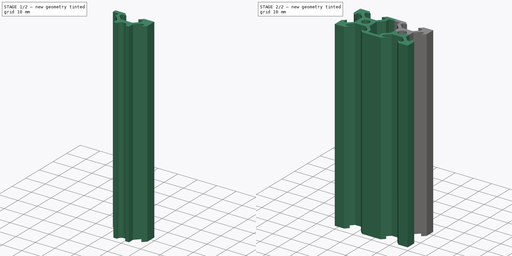
[diagram: build sequence overview — one tinted view per stage of 2, left to right]
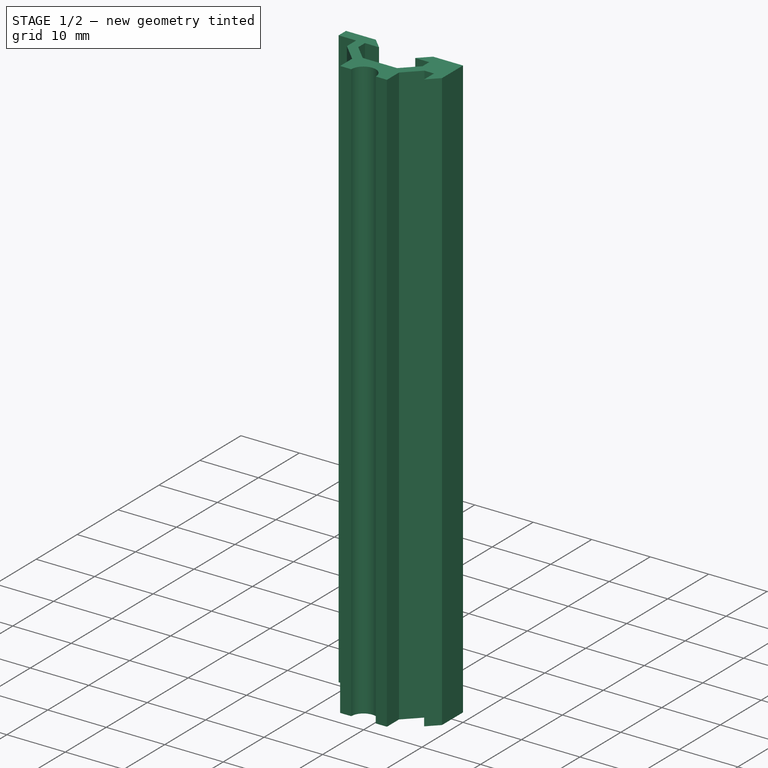
[diagram: stage 1 of 2 — iso view after this stage's code; geometry added in this stage tinted green]
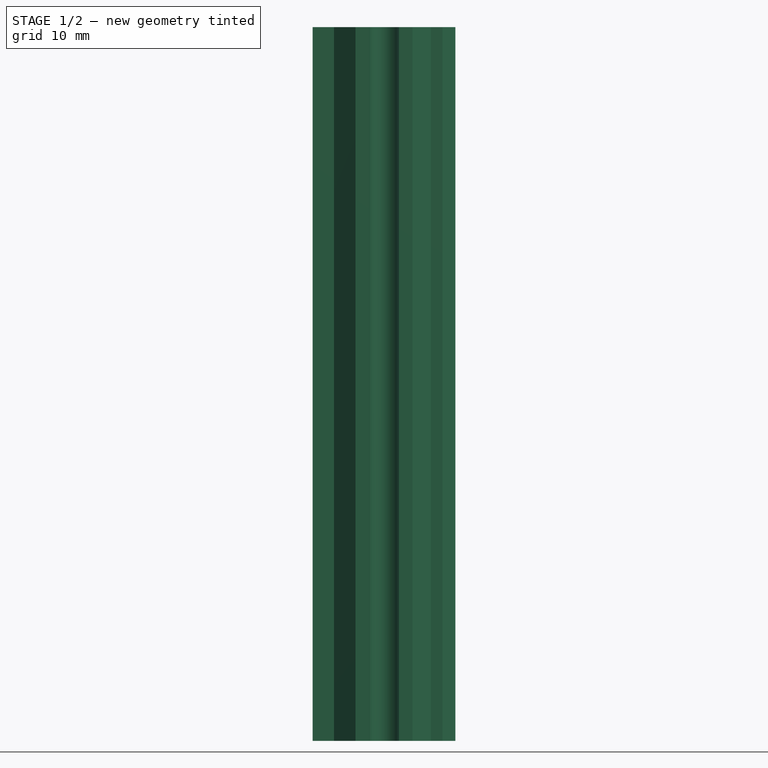
[diagram: stage 1 of 2 — front view after this stage's code; geometry added in this stage tinted green]
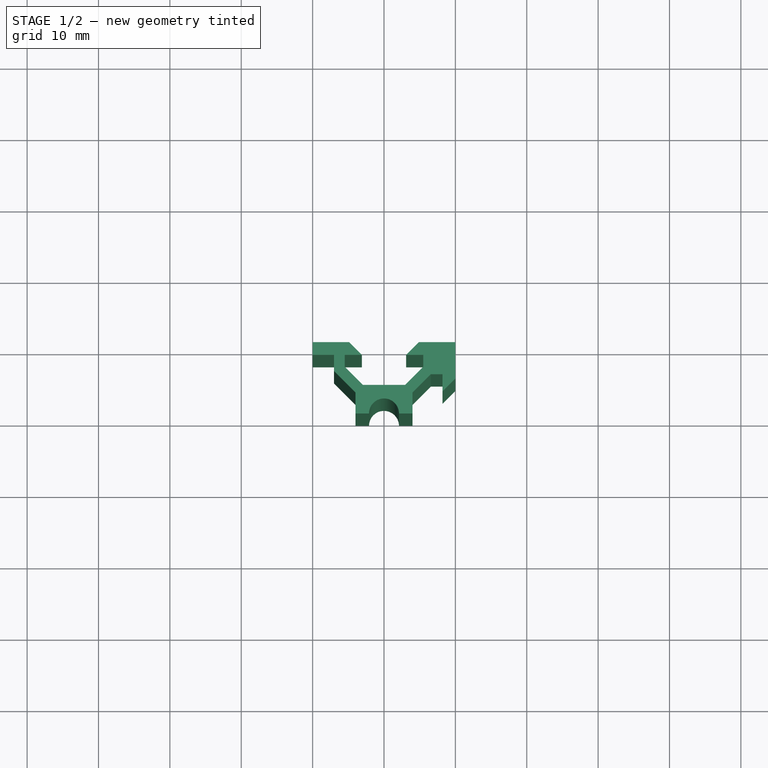
[diagram: stage 1 of 2 — top view after this stage's code; geometry added in this stage tinted green]
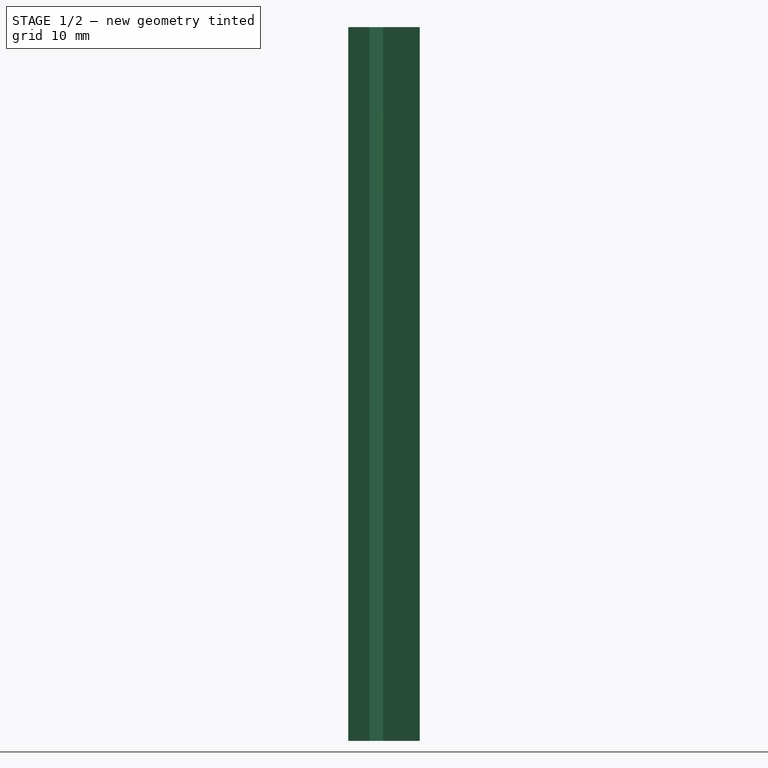
[diagram: stage 1 of 2 — right view after this stage's code; geometry added in this stage tinted green]
FCSTD DOCUMENT  (FreeCAD 0.20R29410 (Git))
Label: AlExtrusion2040
License: All rights reserved
LicenseURL: http://en.wikipedia.org/wiki/All_rights_reserved
objects: App::DocumentObjectGroup×3, PartDesign::Mirrored×2, PartDesign::CoordinateSystem×1, App::FeaturePython×1, Sketcher::SketchObject×1, PartDesign::Pad×1, PartDesign::MultiTransform×1, PartDesign::Body×1, App::Part×1
note: 8 computed .brp shape members not serialized (recipe doc carries the construction recipe); baked Part::Feature solids carry a one-line shape summary decoded from their .brp

FEATURE [App::DocumentObjectGroup] Parts
FEATURE [PartDesign::CoordinateSystem] LCS_Origin
  AttacherType = Attacher::AttachEngine3D
  MapMode = 2
  Support = -> [X_Axis]
FEATURE [App::FeaturePython] Variables  # WARN: FeaturePython — macro-defined, semantics opaque (R4)
  Length = 100
  Type = App::PropertyContainer
FEATURE [App::DocumentObjectGroup] Constraints
FEATURE [App::DocumentObjectGroup] Configurations
FEATURE [Sketcher::SketchObject] Sketch
  FullyConstrained = true
  MapMode = 5
  Support = -> [XY_Plane001]
  sketch-geometry (30):
    g0: LineSegment StartX=0 StartY=10 StartZ=0 EndX=5.1 EndY=10 EndZ=0
    g1: LineSegment StartX=5.1 StartY=10 StartZ=0 EndX=6.9 EndY=8.2 EndZ=0
    g2: LineSegment StartX=6.9 StartY=8.2 StartZ=0 EndX=4.5 EndY=8.2 EndZ=0
    g3: LineSegment StartX=4.5 StartY=8.2 StartZ=0 EndX=4.5 EndY=6.56066 EndZ=0
    g4: LineSegment StartX=4.5 StartY=6.56066 StartZ=0 EndX=7.06066 EndY=4 EndZ=0
    g5: LineSegment StartX=7.06066 StartY=4 StartZ=0 EndX=12.9393 EndY=4 EndZ=0
    g6: LineSegment StartX=12.9393 StartY=4 StartZ=0 EndX=15.5 EndY=6.56066 EndZ=0
    g7: LineSegment StartX=15.5 StartY=6.56066 StartZ=0 EndX=15.5 EndY=8.2 EndZ=0
    g8: LineSegment StartX=15.5 StartY=8.2 StartZ=0 EndX=13.1 EndY=8.2 EndZ=0
    g9: LineSegment StartX=13.1 StartY=8.2 StartZ=0 EndX=14.9 EndY=10 EndZ=0
    g10: LineSegment StartX=14.9 StartY=10 StartZ=0 EndX=20 EndY=10 EndZ=0
    g11: LineSegment StartX=20 StartY=10 StartZ=0 EndX=20 EndY=4.9 EndZ=0
    g12: LineSegment StartX=20 StartY=4.9 StartZ=0 EndX=18.2 EndY=3.1 EndZ=0
    g13: LineSegment StartX=18.2 StartY=3.1 StartZ=0 EndX=18.2 EndY=5.5 EndZ=0
    g14: LineSegment StartX=18.2 StartY=5.5 StartZ=0 EndX=16.5607 EndY=5.5 EndZ=0
    g15: LineSegment StartX=16.5607 StartY=5.5 StartZ=0 EndX=14 EndY=2.93934 EndZ=0
    g16: LineSegment StartX=14 StartY=2.93934 StartZ=0 EndX=14 EndY=0 EndZ=0
    g17: LineSegment StartX=14 StartY=2.93934 StartZ=0 EndX=12.9393 EndY=4 EndZ=0
    g18: LineSegment StartX=14 StartY=0 StartZ=0 EndX=12.1 EndY=0 EndZ=0
    g19: ArcOfCircle CenterX=10 CenterY=0 CenterZ=0 NormalX=0 NormalY=0 NormalZ=1 AngleXU=0 Radius=2.1 StartAngle=0 EndAngle=3.14159
    g20: LineSegment StartX=7.9 StartY=3e-16 StartZ=0 EndX=6 EndY=3e-16 EndZ=0
    g21: LineSegment StartX=6 StartY=3e-16 StartZ=0 EndX=6 EndY=2.93934 EndZ=0
    g22: LineSegment StartX=6 StartY=2.93934 StartZ=0 EndX=3 EndY=5.93934 EndZ=0
    g23: LineSegment StartX=3 StartY=5.93934 StartZ=0 EndX=3 EndY=8.2 EndZ=0
    g24: LineSegment StartX=3 StartY=8.2 StartZ=0 EndX=0 EndY=8.2 EndZ=0
    g25: LineSegment StartX=0 StartY=10 StartZ=0 EndX=0 EndY=8.2 EndZ=0
    g26: LineSegment StartX=7.06066 StartY=4 StartZ=0 EndX=6 EndY=2.93934 EndZ=0
    g27: LineSegment StartX=3 StartY=8.2 StartZ=0 EndX=4.5 EndY=8.2 EndZ=0
    g28: GeomPoint X=10 Y=8.2 Z=0
    g29: LineSegment StartX=10 StartY=8.2 StartZ=0 EndX=10 EndY=0 EndZ=0
  constraints (85):
    c: PointOnObject(g0,g-2)
    c: Coincident(g0,g1)
    c: Coincident(g1,g2)
    c: Coincident(g2,g3)
    c: Coincident(g3,g4)
    c: Coincident(g4,g5)
    c: Horizontal(g5)
    c: Coincident(g5,g6)
    c: Coincident(g6,g7)
    c: Vertical(g7)
    c: Coincident(g7,g8)
    c: Horizontal(g8)
    c: Coincident(g8,g9)
    c: Coincident(g9,g10)
    c: Horizontal(g10)
    c: Coincident(g10,g11)
    c: Vertical(g11)
    c: Coincident(g11,g12)
    c: Coincident(g12,g13)
    c: Coincident(g13,g14)
    c: Coincident(g14,g15)
    c: Coincident(g15,g16)
    c: PointOnObject(g16,g-1)
    c: Vertical(g16)
    c: Horizontal(g14)
    c: Vertical(g13)
    c: Angle(g15,g-1) = 2.35619
    c: Parallel(g6,g15)
    c: Perpendicular(g6,g4)
    c: Vertical(g3)
    c: Horizontal(g2)
    c: Parallel(g1,g4)
    c: Horizontal(g0)
    c: Coincident(g17,g15)
    c: Coincident(g17,g5)
    c: Perpendicular(g15,g17)
    c: Distance(g17) = 1.5
    c: Coincident(g16,g18)
    c: PointOnObject(g18,g-1)
    c: PointOnObject(g19,g-1)
    c: Coincident(g19,g18)
    c: PointOnObject(g19,g-1)
    c: Coincident(g19,g20)
    c: Coincident(g20,g21)
    c: Vertical(g21)
    c: Coincident(g21,g22)
    c: Coincident(g22,g23)
    c: Vertical(g23)
    c: Coincident(g23,g24)
    c: PointOnObject(g24,g-2)
    c: Horizontal(g24)
    c: Coincident(g25,g0)
    c: Coincident(g25,g24)
    c: Parallel(g22,g4)
    c: Coincident(g26,g4)
    c: Coincident(g26,g21)
    c: Perpendicular(g22,g26)
    c: Equal(g26,g17)
    c: Equal(g7,g3)
    c: Coincident(g27,g23)
    c: Coincident(g27,g2)
    c: Horizontal(g27)
    c: DistanceY(g25,g25) = 1.8
    c: DistanceX(g-1,g19) = 10
    c: Horizontal(g20)
    c: Diameter(g19) = 4.2
    c: Equal(g27,g26)
    c: Parallel(g12,g15)
    c: Parallel(g9,g6)
    c: PointOnObject(g8,g2)
    c: PointOnObject(g9,g0)
    c: DistanceY(g-1,g0) = 10
    c: DistanceX(g2,g7) = 11
    c: DistanceX(g1,g8) = 6.2
    c: Equal(g14,g7)
    c: Equal(g13,g8)
    c: DistanceX(g0,g10) = 20
    c: Equal(g10,g11)
    c: Equal(g12,g9)
    c: Symmetric(g8,g1,g28)
    c: Coincident(g29,g28)
    c: Coincident(g29,g19)
    c: Vertical(g29)
    c: Equal(g18,g20)
    c: DistanceX(g20,g16) = 8
FEATURE [PartDesign::Pad] Pad
  Direction = (0,0,1)
  Length = 100
  Length2 = 10
  Profile = -> Sketch
  ReferenceAxis = -> Sketch [N_Axis]
  Type = 0
  expr: Length = <<Variables>>.Length
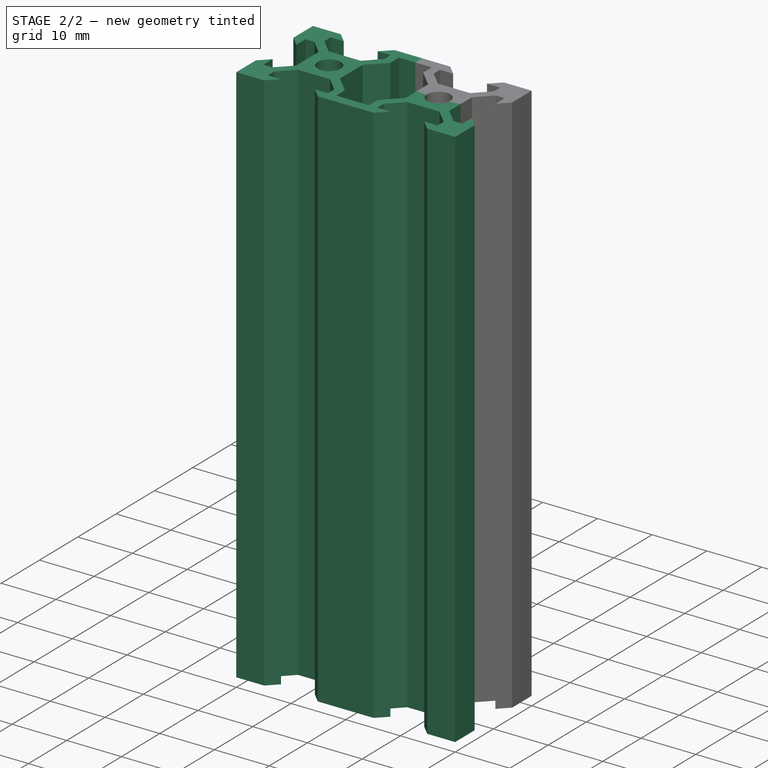
[diagram: stage 2 of 2 — iso view after this stage's code; geometry added in this stage tinted green]
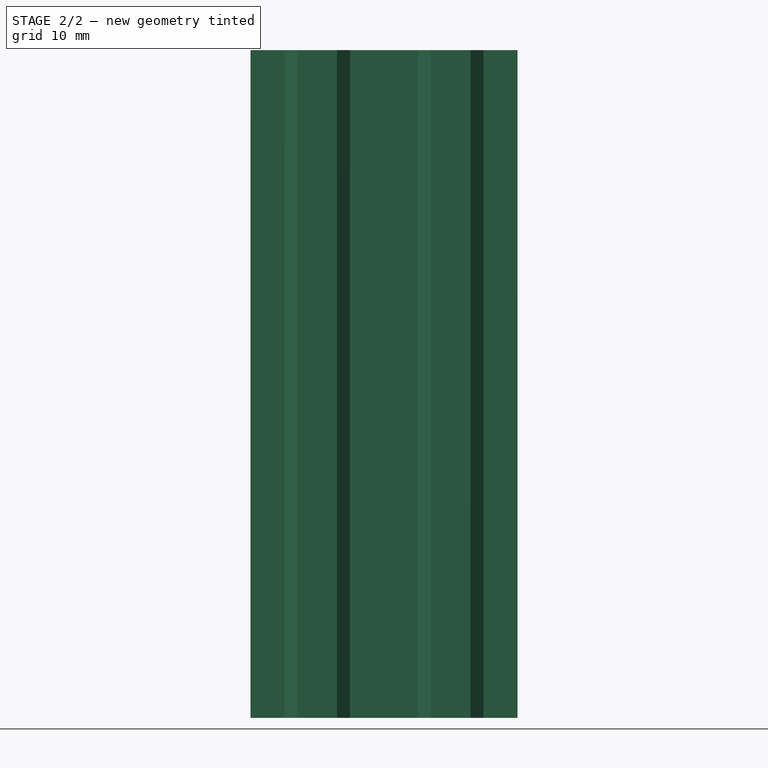
[diagram: stage 2 of 2 — front view after this stage's code; geometry added in this stage tinted green]
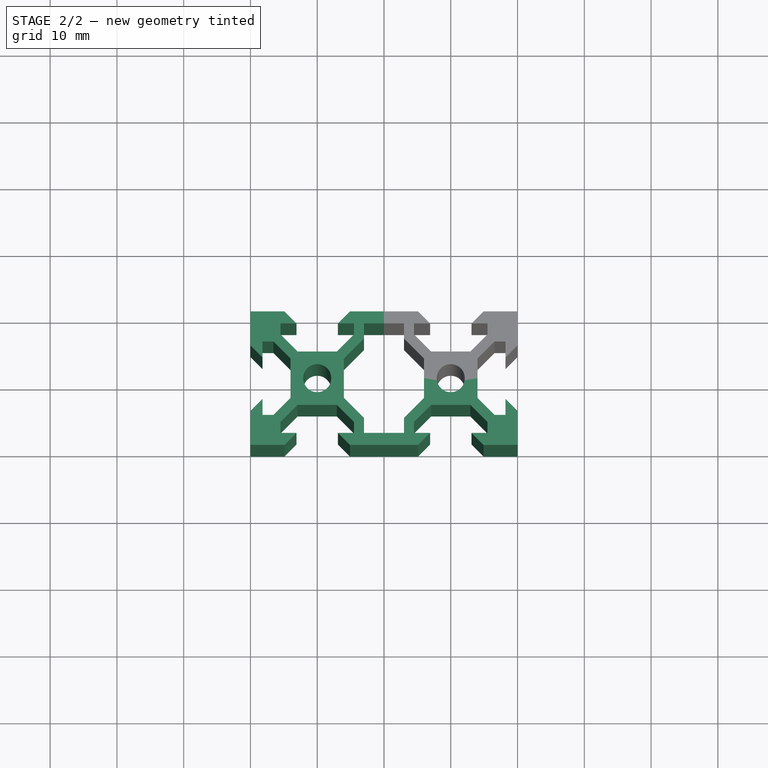
[diagram: stage 2 of 2 — top view after this stage's code; geometry added in this stage tinted green]
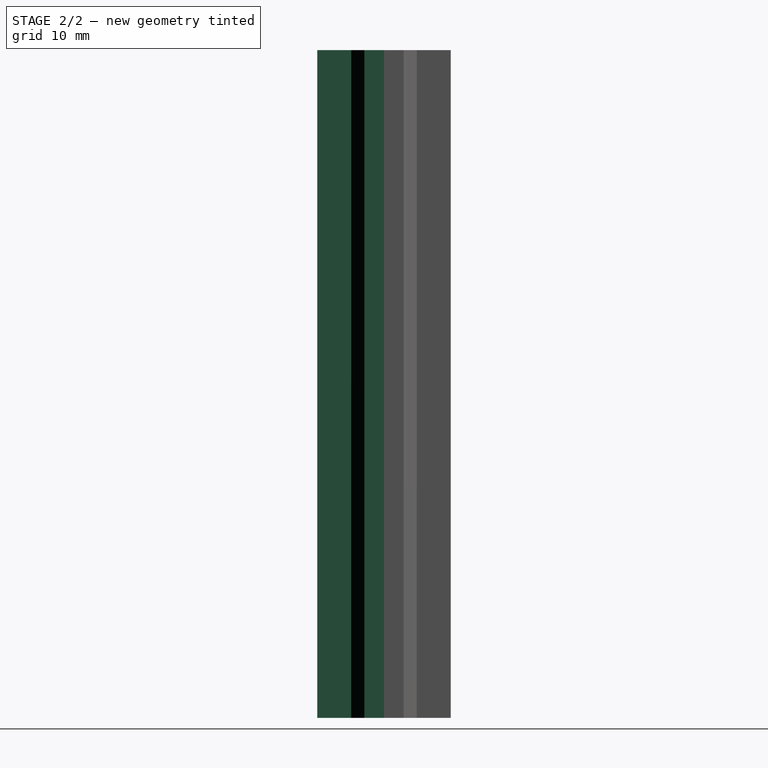
[diagram: stage 2 of 2 — right view after this stage's code; geometry added in this stage tinted green]
FEATURE [PartDesign::Mirrored] Mirrored
  MirrorPlane = -> Sketch [V_Axis]
FEATURE [PartDesign::Mirrored] Mirrored001
  MirrorPlane = -> Sketch [H_Axis]
FEATURE [PartDesign::MultiTransform] MultiTransform
  BaseFeature = -> Pad
  Originals = -> [Pad]
  Transformations = -> [Mirrored,Mirrored001]
FEATURE [PartDesign::Body] Body
  Group = -> [Sketch,Pad,MultiTransform,Mirrored,Mirrored001]
  Origin = -> Origin001
  Tip = -> MultiTransform
FEATURE [App::Part] Assembly
  AssemblyType = Part::Link
  Group = -> [LCS_Origin,Variables,Constraints,Configurations,Body]
  Origin = -> Origin
  Type = Assembly
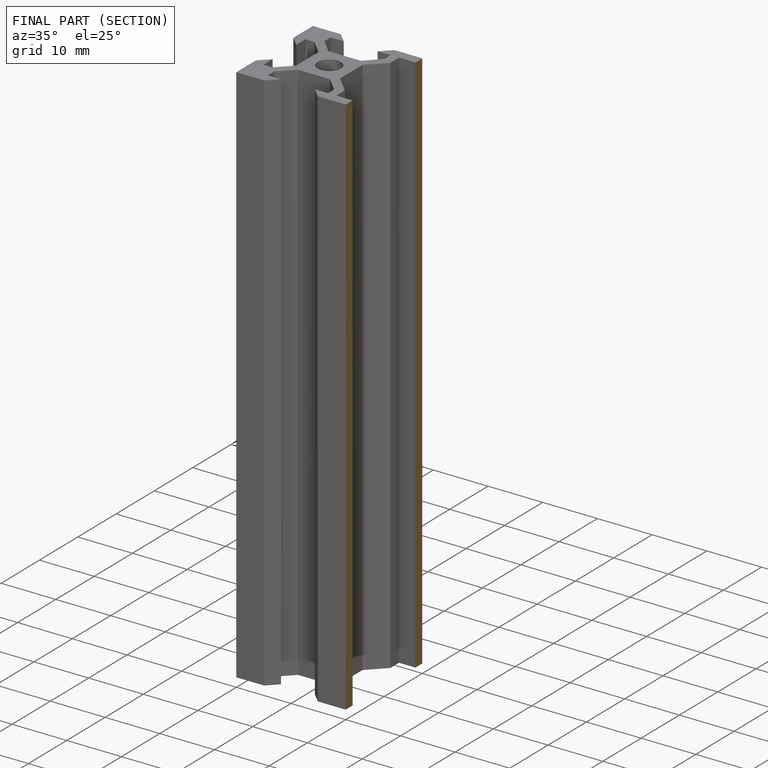
[diagram: finished part — half-section view (interior)]
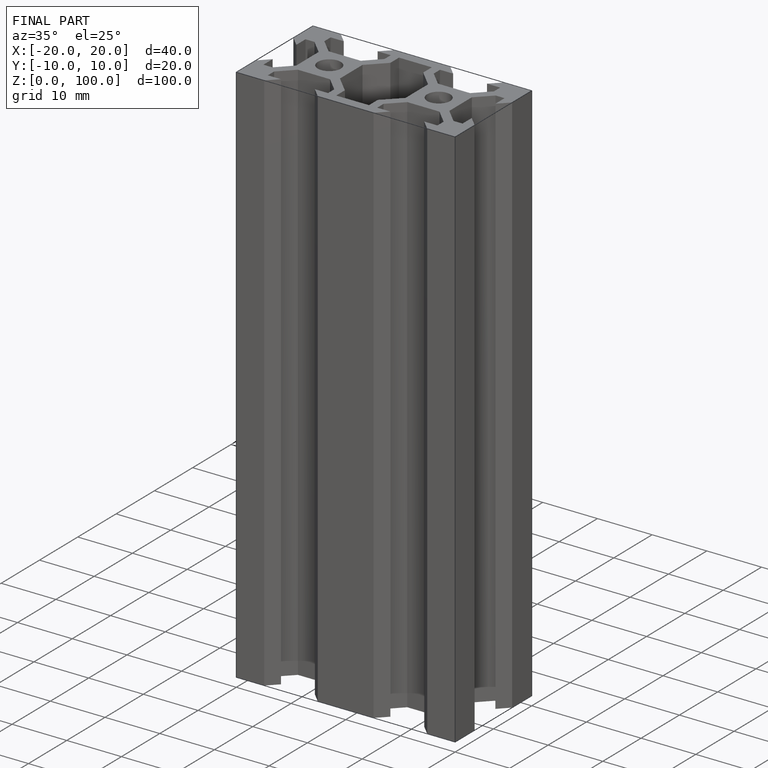
[diagram: finished part — iso view with bounding-box wireframe]
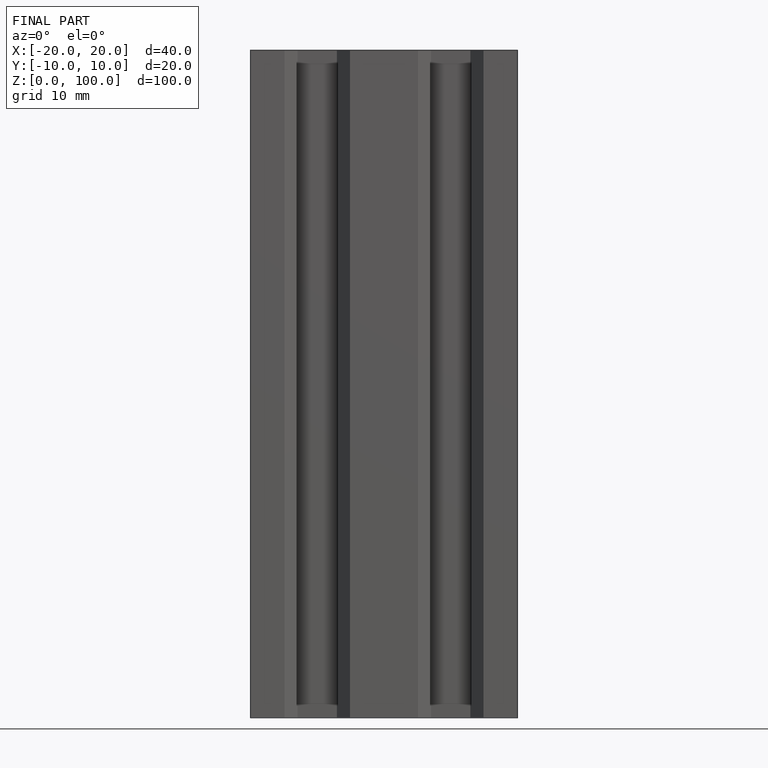
[diagram: finished part — front view with bounding-box wireframe]
